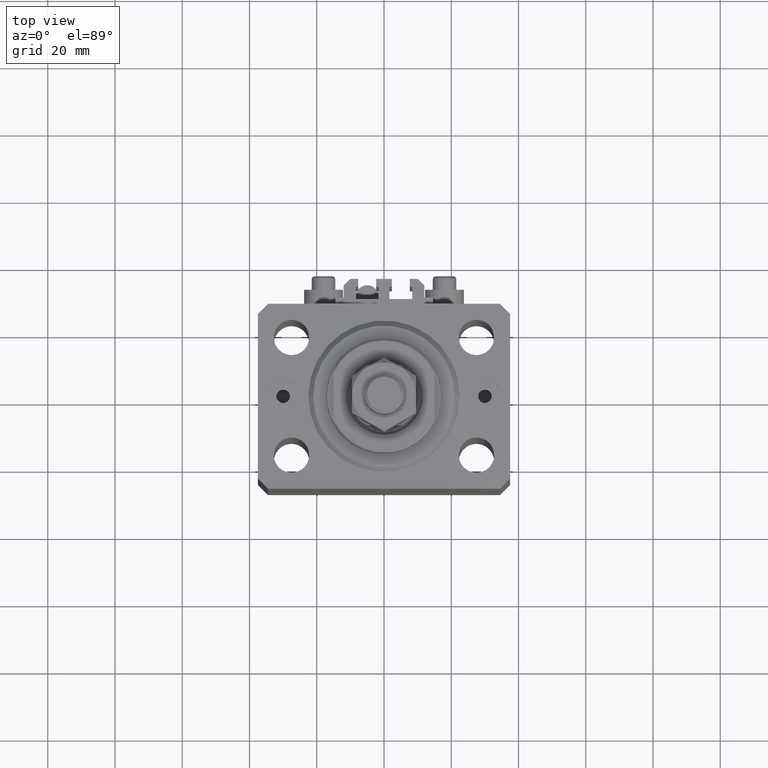
[diagram: clean part render]
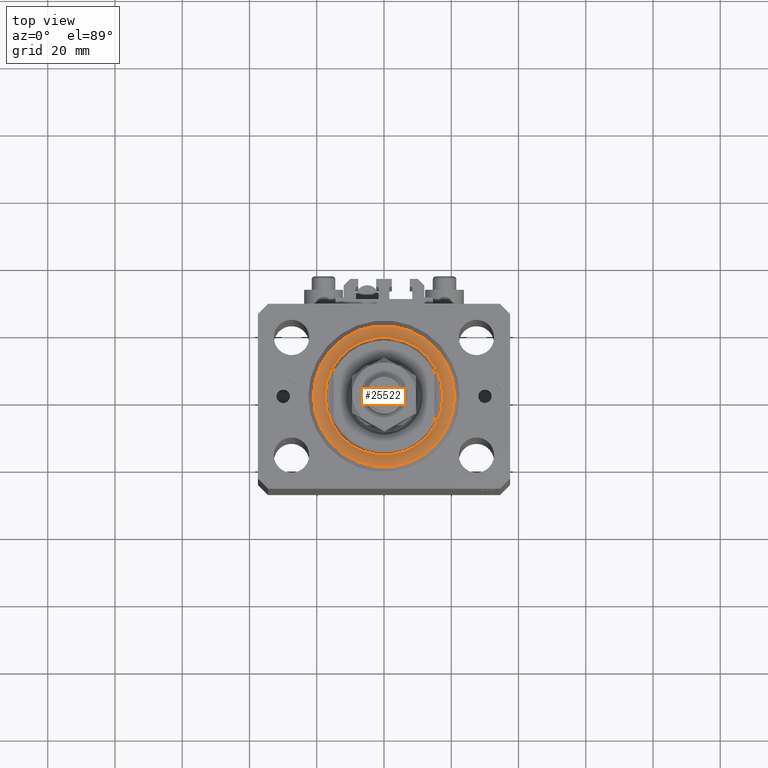
[diagram: same view with one face highlighted and labeled with its STEP entity id]
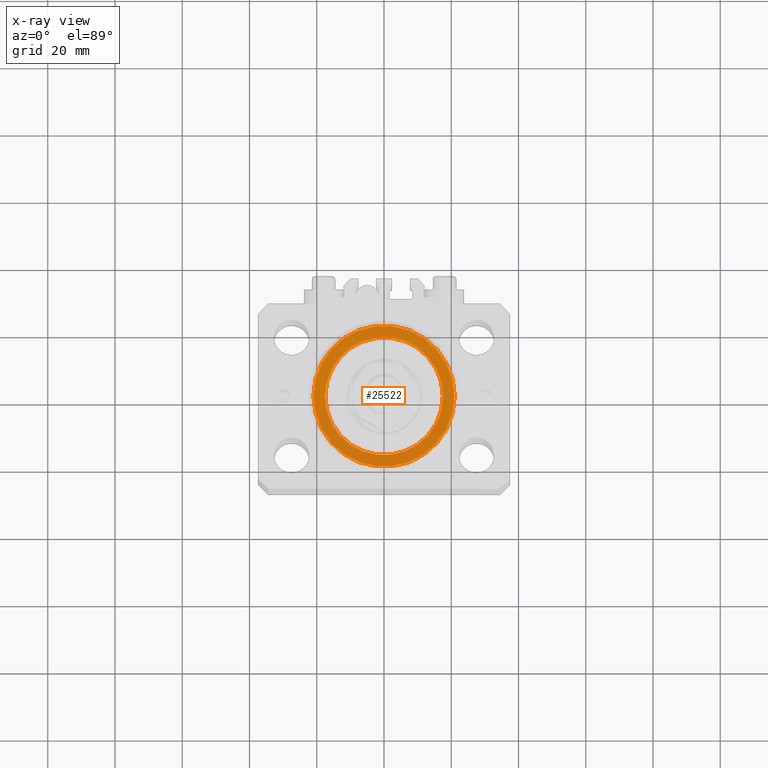
[diagram: x-ray of the same camera — body ghosted, the highlighted face saturated]
A machine part, top view. The second image highlights one B-rep face of the part: STEP entity #25522.
The next image is the same camera in x-ray: the body ghosted, the highlighted face saturated — about 0% of this face is hidden behind the body in this view.
In plain terms, the highlighted planar face has unit normal (0, 0, -1).
Its self-contained STEP definition (entity closure, byte-faithful):
#319 = DIRECTION ( 'NONE',  ( 1.000000000000000000, 0.000000000000000000, 0.000000000000000000 ) ) ;
#502 = DIRECTION ( 'NONE',  ( 0.000000000000000000, 0.000000000000000000, 1.000000000000000000 ) ) ;
#738 = DIRECTION ( 'NONE',  ( 1.000000000000000000, 0.000000000000000000, 0.000000000000000000 ) ) ;
#744 = CARTESIAN_POINT ( 'NONE',  ( 0.000000000000000000, 0.000000000000000000, 0.000000000000000000 ) ) ;
#3020 = CARTESIAN_POINT ( 'NONE',  ( 17.50000000000000000, 0.000000000000000000, -2.168404344971008868E-16 ) ) ;
#4028 = EDGE_CURVE ( 'NONE', #34620, #14953, #13091, .T. ) ;
#4283 = FACE_OUTER_BOUND ( 'NONE', #37355, .T. ) ;
#4349 = DIRECTION ( 'NONE',  ( -0.000000000000000000, -0.000000000000000000, -1.000000000000000000 ) ) ;
#4419 = VERTEX_POINT ( 'NONE', #18006 ) ;
#6457 = CARTESIAN_POINT ( 'NONE',  ( 20.99999999999995381, 0.000000000000000000, 0.000000000000000000 ) ) ;
#9548 = ORIENTED_EDGE ( 'NONE', *, *, #43964, .T. ) ;
#10699 = ORIENTED_EDGE ( 'NONE', *, *, #43968, .T. ) ;
#11894 = CARTESIAN_POINT ( 'NONE',  ( 0.000000000000000000, 0.000000000000000000, 0.000000000000000000 ) ) ;
#13091 = CIRCLE ( 'NONE', #29910, 20.99999999999995381 ) ;
#14953 = VERTEX_POINT ( 'NONE', #6457 ) ;
#15188 = DIRECTION ( 'NONE',  ( 1.000000000000000000, 0.000000000000000000, 0.000000000000000000 ) ) ;
#15813 = DIRECTION ( 'NONE',  ( 0.000000000000000000, 0.000000000000000000, 1.000000000000000000 ) ) ;
#16480 = CIRCLE ( 'NONE', #21285, 17.50000000000000000 ) ;
#18006 = CARTESIAN_POINT ( 'NONE',  ( -17.50000000000000000, 2.143131898507868643E-15, -2.168404344971008868E-16 ) ) ;
#19590 = PLANE ( 'NONE',  #33178 ) ;
#21285 = AXIS2_PLACEMENT_3D ( 'NONE', #11894, #49490, #319 ) ;
#21740 = ORIENTED_EDGE ( 'NONE', *, *, #34567, .T. ) ;
#22370 = VERTEX_POINT ( 'NONE', #3020 ) ;
#23410 = DIRECTION ( 'NONE',  ( 1.000000000000000000, 0.000000000000000000, 0.000000000000000000 ) ) ;
#23511 = CIRCLE ( 'NONE', #39507, 17.50000000000000000 ) ;
#25522 = ADVANCED_FACE ( 'NONE', ( #42401, #4283 ), #19590, .F. ) ;
#27346 = CARTESIAN_POINT ( 'NONE',  ( -20.99999999999995381, 2.663606788145490261E-15, 0.000000000000000000 ) ) ;
#29726 = DIRECTION ( 'NONE',  ( -0.000000000000000000, -0.000000000000000000, -1.000000000000000000 ) ) ;
#29910 = AXIS2_PLACEMENT_3D ( 'NONE', #33740, #29726, #15188 ) ;
#31088 = CARTESIAN_POINT ( 'NONE',  ( 0.000000000000000000, 0.000000000000000000, 0.000000000000000000 ) ) ;
#31639 = AXIS2_PLACEMENT_3D ( 'NONE', #34207, #4349, #23410 ) ;
#33178 = AXIS2_PLACEMENT_3D ( 'NONE', #744, #502, #42638 ) ;
#33740 = CARTESIAN_POINT ( 'NONE',  ( 0.000000000000000000, 0.000000000000000000, 0.000000000000000000 ) ) ;
#34207 = CARTESIAN_POINT ( 'NONE',  ( 0.000000000000000000, 0.000000000000000000, 0.000000000000000000 ) ) ;
#34567 = EDGE_CURVE ( 'NONE', #4419, #22370, #23511, .T. ) ;
#34620 = VERTEX_POINT ( 'NONE', #27346 ) ;
#36450 = CIRCLE ( 'NONE', #31639, 20.99999999999995381 ) ;
#37355 = EDGE_LOOP ( 'NONE', ( #9548, #46879 ) ) ;
#39507 = AXIS2_PLACEMENT_3D ( 'NONE', #31088, #15813, #738 ) ;
#42401 = FACE_BOUND ( 'NONE', #48695, .T. ) ;
#42638 = DIRECTION ( 'NONE',  ( 1.000000000000000000, 0.000000000000000000, -0.000000000000000000 ) ) ;
#43964 = EDGE_CURVE ( 'NONE', #14953, #34620, #36450, .T. ) ;
#43968 = EDGE_CURVE ( 'NONE', #22370, #4419, #16480, .T. ) ;
#46879 = ORIENTED_EDGE ( 'NONE', *, *, #4028, .T. ) ;
#48695 = EDGE_LOOP ( 'NONE', ( #10699, #21740 ) ) ;
#49490 = DIRECTION ( 'NONE',  ( 0.000000000000000000, 0.000000000000000000, 1.000000000000000000 ) ) ;